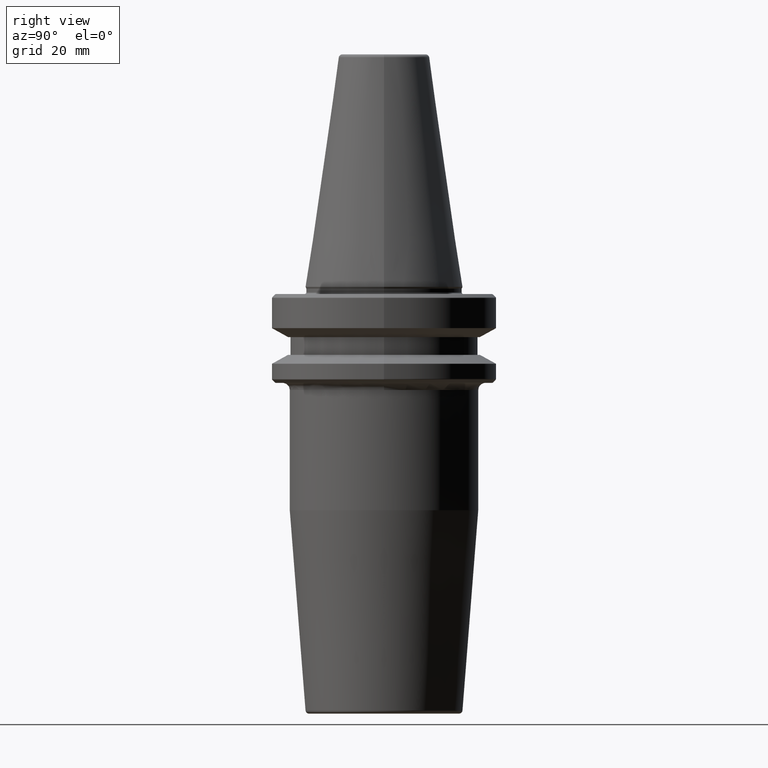
[diagram: clean part render]
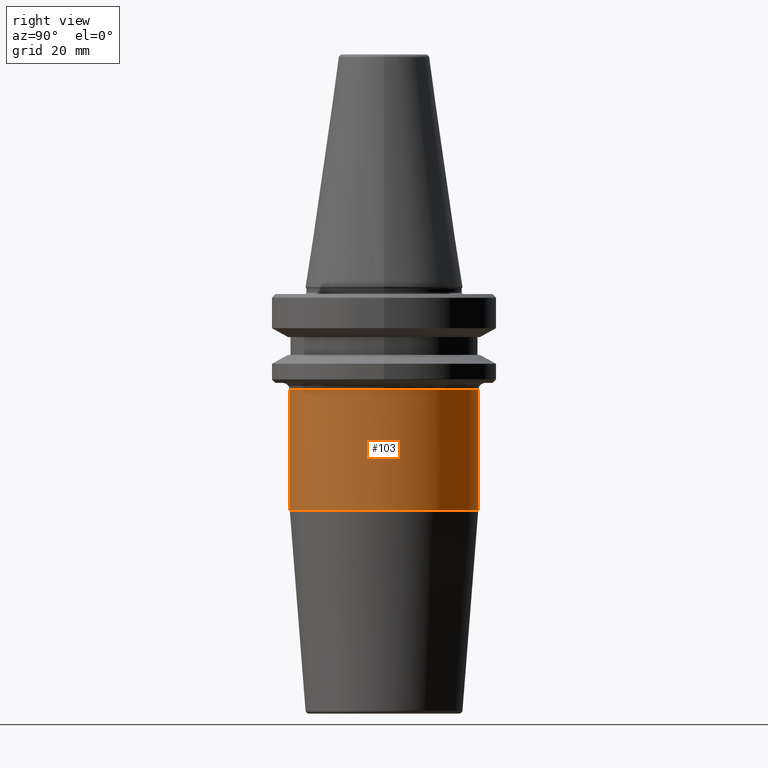
[diagram: same view with one face highlighted and labeled with its STEP entity id]
A machine part, right view. The second image highlights one B-rep face of the part: STEP entity #103.
In plain terms, the highlighted cylindrical surface (partial cylindrical patch) has radius 26.5 mm, axis along (-0, 0, -1).
Its self-contained STEP definition (entity closure, byte-faithful):
#54 = DIRECTION ( 'NONE',  ( 0.0000000000000000000, 1.000000000000000000, 0.0000000000000000000 ) ) ;
#103 = ADVANCED_FACE ( 'NONE', ( #841 ), #587, .T. ) ;
#109 = EDGE_CURVE ( 'NONE', #591, #787, #350, .T. ) ;
#129 = AXIS2_PLACEMENT_3D ( 'NONE', #475, #576, #1250 ) ;
#130 = CARTESIAN_POINT ( 'NONE',  ( 0.0000000000000000000, 26.49999999999999600, -120.0000000000000000 ) ) ;
#278 = VERTEX_POINT ( 'NONE', #1203 ) ;
#317 = VECTOR ( 'NONE', #981, 1000.000000000000000 ) ;
#342 = CIRCLE ( 'NONE', #1100, 26.49999999999999300 ) ;
#350 = LINE ( 'NONE', #130, #317 ) ;
#412 = CARTESIAN_POINT ( 'NONE',  ( 26.49999999999999600, 3.478391956933045400E-015, -28.99999999999999600 ) ) ;
#432 = EDGE_CURVE ( 'NONE', #787, #654, #649, .T. ) ;
#465 = EDGE_CURVE ( 'NONE', #591, #1237, #342, .T. ) ;
#475 = CARTESIAN_POINT ( 'NONE',  ( 0.0000000000000000000, 1.106132592778247800E-016, -28.99999999999999600 ) ) ;
#491 = ORIENTED_EDGE ( 'NONE', *, *, #109, .F. ) ;
#574 = CARTESIAN_POINT ( 'NONE',  ( 0.0000000000000000000, 1.981198438849161000E-015, -62.82207868720364300 ) ) ;
#576 = DIRECTION ( 'NONE',  ( 0.0000000000000000000, 0.0000000000000000000, -1.000000000000000000 ) ) ;
#581 = LINE ( 'NONE', #1050, #1064 ) ;
#587 = CYLINDRICAL_SURFACE ( 'NONE', #952, 26.49999999999999300 ) ;
#591 = VERTEX_POINT ( 'NONE', #752 ) ;
#649 = CIRCLE ( 'NONE', #906, 26.50000000000000000 ) ;
#654 = VERTEX_POINT ( 'NONE', #883 ) ;
#752 = CARTESIAN_POINT ( 'NONE',  ( 0.0000000000000000000, 26.49999999999999300, -28.99999999999999600 ) ) ;
#754 = CARTESIAN_POINT ( 'NONE',  ( 0.0000000000000000000, 1.106132592778247800E-016, -28.99999999999999600 ) ) ;
#774 = ORIENTED_EDGE ( 'NONE', *, *, #432, .F. ) ;
#787 = VERTEX_POINT ( 'NONE', #1006 ) ;
#812 = DIRECTION ( 'NONE',  ( -0.0000000000000000000, 5.530662963891274600E-017, -1.000000000000000000 ) ) ;
#841 = FACE_OUTER_BOUND ( 'NONE', #953, .T. ) ;
#867 = DIRECTION ( 'NONE',  ( 0.0000000000000000000, 0.0000000000000000000, -1.000000000000000000 ) ) ;
#883 = CARTESIAN_POINT ( 'NONE',  ( 0.0000000000000000000, -26.49999999999999600, -62.82207868720364300 ) ) ;
#906 = AXIS2_PLACEMENT_3D ( 'NONE', #574, #1248, #54 ) ;
#926 = EDGE_CURVE ( 'NONE', #278, #654, #581, .T. ) ;
#952 = AXIS2_PLACEMENT_3D ( 'NONE', #1174, #812, #1023 ) ;
#953 = EDGE_LOOP ( 'NONE', ( #1084, #1031, #1156, #774, #491 ) ) ;
#954 = EDGE_CURVE ( 'NONE', #1237, #278, #1101, .T. ) ;
#959 = DIRECTION ( 'NONE',  ( -0.0000000000000000000, 5.530662963891274600E-017, -1.000000000000000000 ) ) ;
#981 = DIRECTION ( 'NONE',  ( -0.0000000000000000000, 5.530662963891274600E-017, -1.000000000000000000 ) ) ;
#1006 = CARTESIAN_POINT ( 'NONE',  ( 3.245314017740485400E-015, 26.49999999999999600, -62.82207868720364300 ) ) ;
#1023 = DIRECTION ( 'NONE',  ( 0.0000000000000000000, 1.000000000000000000, 0.0000000000000000000 ) ) ;
#1031 = ORIENTED_EDGE ( 'NONE', *, *, #954, .T. ) ;
#1050 = CARTESIAN_POINT ( 'NONE',  ( 3.245314017740485000E-015, -26.49999999999998900, -120.0000000000000000 ) ) ;
#1055 = DIRECTION ( 'NONE',  ( -1.000000000000000000, 0.0000000000000000000, 0.0000000000000000000 ) ) ;
#1064 = VECTOR ( 'NONE', #959, 1000.000000000000000 ) ;
#1084 = ORIENTED_EDGE ( 'NONE', *, *, #465, .T. ) ;
#1100 = AXIS2_PLACEMENT_3D ( 'NONE', #754, #867, #1055 ) ;
#1101 = CIRCLE ( 'NONE', #129, 26.49999999999999300 ) ;
#1156 = ORIENTED_EDGE ( 'NONE', *, *, #926, .T. ) ;
#1174 = CARTESIAN_POINT ( 'NONE',  ( 0.0000000000000000000, 5.143516556418884100E-015, -120.0000000000000000 ) ) ;
#1203 = CARTESIAN_POINT ( 'NONE',  ( 3.245314017740485800E-015, -26.49999999999999600, -28.99999999999999600 ) ) ;
#1237 = VERTEX_POINT ( 'NONE', #412 ) ;
#1248 = DIRECTION ( 'NONE',  ( -0.0000000000000000000, 5.530662963891274600E-017, -1.000000000000000000 ) ) ;
#1250 = DIRECTION ( 'NONE',  ( -1.000000000000000000, 0.0000000000000000000, 0.0000000000000000000 ) ) ;